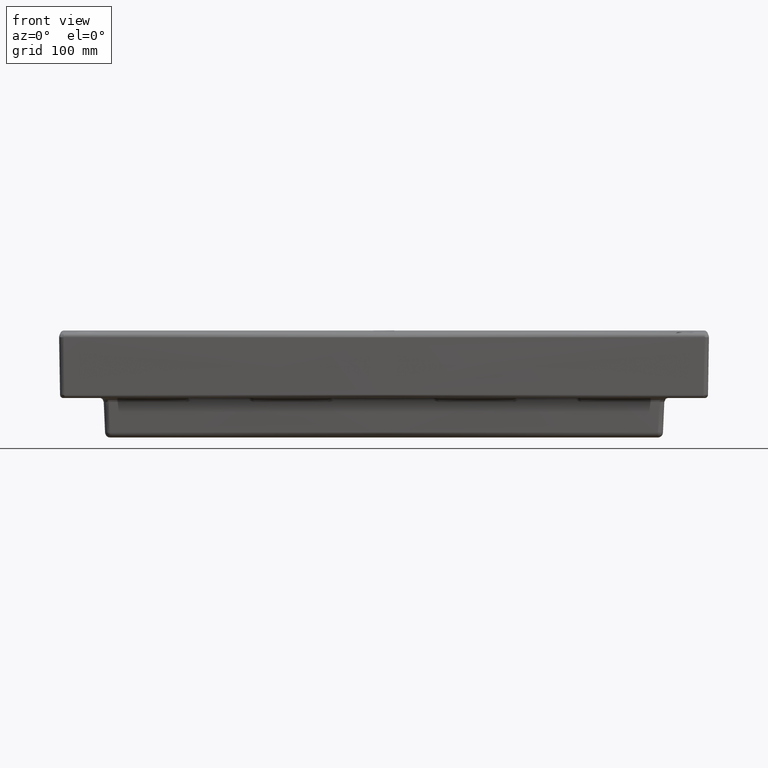
[diagram: clean part render]
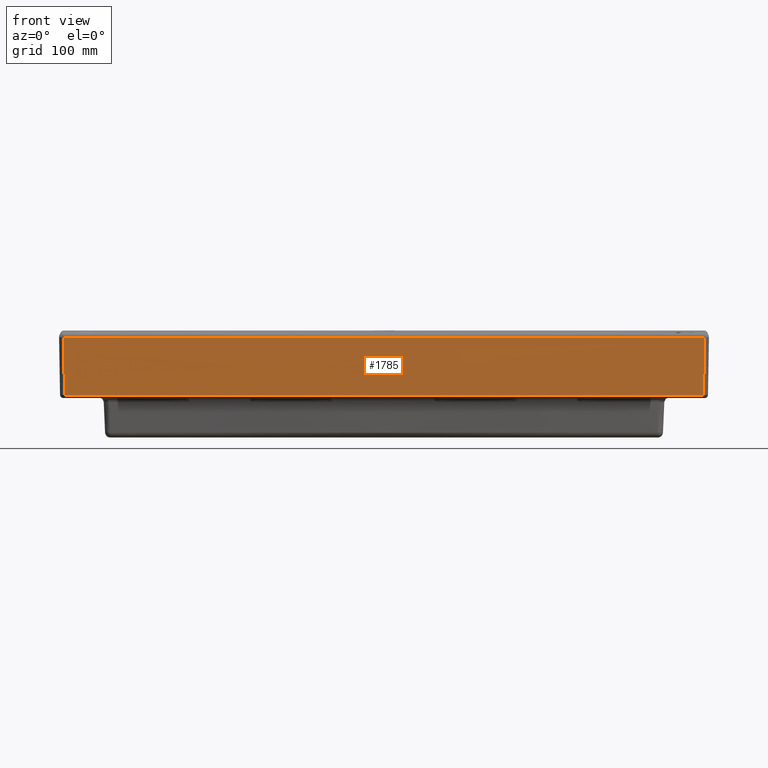
[diagram: same view with one face highlighted and labeled with its STEP entity id]
A machine part, front view. The second image highlights one B-rep face of the part: STEP entity #1785.
In plain terms, the highlighted face is a freeform B-spline surface patch.
Its self-contained STEP definition (entity closure, byte-faithful):
#742=B_SPLINE_SURFACE_WITH_KNOTS('',3,3,((#28850,#28851,#28852,#28853),
(#28854,#28855,#28856,#28857),(#28858,#28859,#28860,#28861),(#28862,#28863,
#28864,#28865)),.UNSPECIFIED.,.F.,.F.,.F.,(4,4),(4,4),(0.,1.),(0.,1.),
 .UNSPECIFIED.);
#818=FACE_OUTER_BOUND('',#2610,.T.);
#1359=B_SPLINE_CURVE_WITH_KNOTS('',3,(#28815,#28816,#28817,#28818,#28819,
#28820,#28821,#28822,#28823,#28824),.UNSPECIFIED.,.F.,.F.,(4,3,3,4),(0.,
0.0880306732805792,0.716693235738184,1.),.UNSPECIFIED.);
#1360=B_SPLINE_CURVE_WITH_KNOTS('',3,(#28827,#28828,#28829,#28830),
 .UNSPECIFIED.,.F.,.F.,(4,4),(0.,1.),.UNSPECIFIED.);
#1361=B_SPLINE_CURVE_WITH_KNOTS('',3,(#28832,#28833,#28834,#28835,#28836,
#28837,#28838,#28839,#28840,#28841,#28842,#28843,#28844),.UNSPECIFIED.,
 .F.,.F.,(4,3,3,3,4),(0.,0.102470222784845,0.731132817417612,0.796299260195487,
1.),.UNSPECIFIED.);
#1362=B_SPLINE_CURVE_WITH_KNOTS('',3,(#28846,#28847,#28848,#28849),
 .UNSPECIFIED.,.F.,.F.,(4,4),(0.,1.),.UNSPECIFIED.);
#1785=ADVANCED_FACE('',(#818),#742,.T.);
#2610=EDGE_LOOP('',(#3310,#3311,#3312,#3313));
#3310=ORIENTED_EDGE('',*,*,#5878,.T.);
#3311=ORIENTED_EDGE('',*,*,#5879,.T.);
#3312=ORIENTED_EDGE('',*,*,#5880,.T.);
#3313=ORIENTED_EDGE('',*,*,#5881,.T.);
#5264=VERTEX_POINT('',#28825);
#5265=VERTEX_POINT('',#28826);
#5266=VERTEX_POINT('',#28831);
#5267=VERTEX_POINT('',#28845);
#5878=EDGE_CURVE('',#5264,#5265,#1359,.T.);
#5879=EDGE_CURVE('',#5265,#5266,#1360,.T.);
#5880=EDGE_CURVE('',#5266,#5267,#1361,.T.);
#5881=EDGE_CURVE('',#5267,#5264,#1362,.T.);
#28815=CARTESIAN_POINT('',(-494.424886248802,-491.575933174663,-22.3815852066888));
#28816=CARTESIAN_POINT('',(-494.382211419667,-491.486199715358,-24.9935611602158));
#28817=CARTESIAN_POINT('',(-494.339536583451,-491.396466228711,-27.6055371126877));
#28818=CARTESIAN_POINT('',(-494.296861740143,-491.30673271489,-30.2175130641101));
#28819=CARTESIAN_POINT('',(-493.992103462754,-490.665909480954,-48.8706873896682));
#28820=CARTESIAN_POINT('',(-493.687344823708,-490.025084861082,-67.5238616617041));
#28821=CARTESIAN_POINT('',(-493.38258581945,-489.384258917044,-86.1770358822817));
#28822=CARTESIAN_POINT('',(-493.245246183639,-489.095470725251,-94.5830882659087));
#28823=CARTESIAN_POINT('',(-493.107906473658,-488.806682264551,-102.989140639086));
#28824=CARTESIAN_POINT('',(-492.970566689177,-488.517893540654,-111.395193002003));
#28825=CARTESIAN_POINT('',(-494.424886248802,-491.575933174663,-22.3815852066888));
#28826=CARTESIAN_POINT('',(-492.970566689177,-488.517893540654,-111.395193002003));
#28827=CARTESIAN_POINT('',(-492.970566689177,-488.517893540654,-111.395193002003));
#28828=CARTESIAN_POINT('',(-164.350885773396,-494.925586395308,-111.452182218623));
#28829=CARTESIAN_POINT('',(164.351176898591,-494.925584335959,-111.452182200308));
#28830=CARTESIAN_POINT('',(492.97085468549,-488.517887540547,-111.395192948639));
#28831=CARTESIAN_POINT('',(492.97085468549,-488.517887540547,-111.395192948639));
#28832=CARTESIAN_POINT('',(492.97085468549,-488.517887540547,-111.395192948639));
#28833=CARTESIAN_POINT('',(493.020519758597,-488.622340742934,-108.35477822312));
#28834=CARTESIAN_POINT('',(493.070184821956,-488.726793911037,-105.314363496264));
#28835=CARTESIAN_POINT('',(493.119849875584,-488.831247044586,-102.273948768062));
#28836=CARTESIAN_POINT('',(493.424548749342,-489.472074947266,-83.6207736324471));
#28837=CARTESIAN_POINT('',(493.729247256824,-490.112901549286,-64.9675984461649));
#28838=CARTESIAN_POINT('',(494.0339454016,-490.753726788601,-46.3144232071426));
#28839=CARTESIAN_POINT('',(494.065530061457,-490.820153997162,-44.3808564779983));
#28840=CARTESIAN_POINT('',(494.097114717416,-490.886581191082,-42.4472897482874));
#28841=CARTESIAN_POINT('',(494.128699369482,-490.953008370292,-40.5137230180075));
#28842=CARTESIAN_POINT('',(494.227428358177,-491.160649987224,-34.4696770853188));
#28843=CARTESIAN_POINT('',(494.32615730883,-491.36829146042,-28.4256311470706));
#28844=CARTESIAN_POINT('',(494.42488622156,-491.575932787795,-22.3815852031933));
#28845=CARTESIAN_POINT('',(494.42488622156,-491.575932787795,-22.3815852031933));
#28846=CARTESIAN_POINT('',(494.42488622156,-491.575932787795,-22.3815852031933));
#28847=CARTESIAN_POINT('',(164.845921878266,-498.050564537008,-22.4400860959293));
#28848=CARTESIAN_POINT('',(-164.845921640962,-498.050564671048,-22.4400860971398));
#28849=CARTESIAN_POINT('',(-494.424886248802,-491.575933174663,-22.3815852066888));
#28850=CARTESIAN_POINT('',(501.243965069539,-491.459561733844,-21.8463107758683));
#28851=CARTESIAN_POINT('',(500.453190509903,-490.434286804657,-51.8740695225572));
#28852=CARTESIAN_POINT('',(499.662415680115,-489.4089590868,-81.9018264598872));
#28853=CARTESIAN_POINT('',(498.871640578524,-488.383578559983,-111.929581586937));
#28854=CARTESIAN_POINT('',(167.125611743354,-498.114174278683,-21.9048428842143));
#28855=CARTESIAN_POINT('',(166.861679343859,-497.05782955403,-51.9320480718198));
#28856=CARTESIAN_POINT('',(166.597746854635,-496.001502425505,-81.9592538625339));
#28857=CARTESIAN_POINT('',(166.333814275119,-494.945192899874,-111.986460256664));
#28858=CARTESIAN_POINT('',(-167.125322206774,-498.11417633529,-21.904842902145));
#28859=CARTESIAN_POINT('',(-166.861390295382,-497.057831601037,-51.9320480895798));
#28860=CARTESIAN_POINT('',(-166.597458294257,-496.001504462936,-81.9592538801239));
#28861=CARTESIAN_POINT('',(-166.333526202847,-494.945194927751,-111.986460274084));
#28862=CARTESIAN_POINT('',(-501.243675620899,-491.459567891534,-21.84631083003));
#28863=CARTESIAN_POINT('',(-500.45290154876,-490.434292933597,-51.8740695762065));
#28864=CARTESIAN_POINT('',(-499.662127206468,-489.408965187057,-81.9018265130264));
#28865=CARTESIAN_POINT('',(-498.871352592374,-488.383584631621,-111.929581639568));